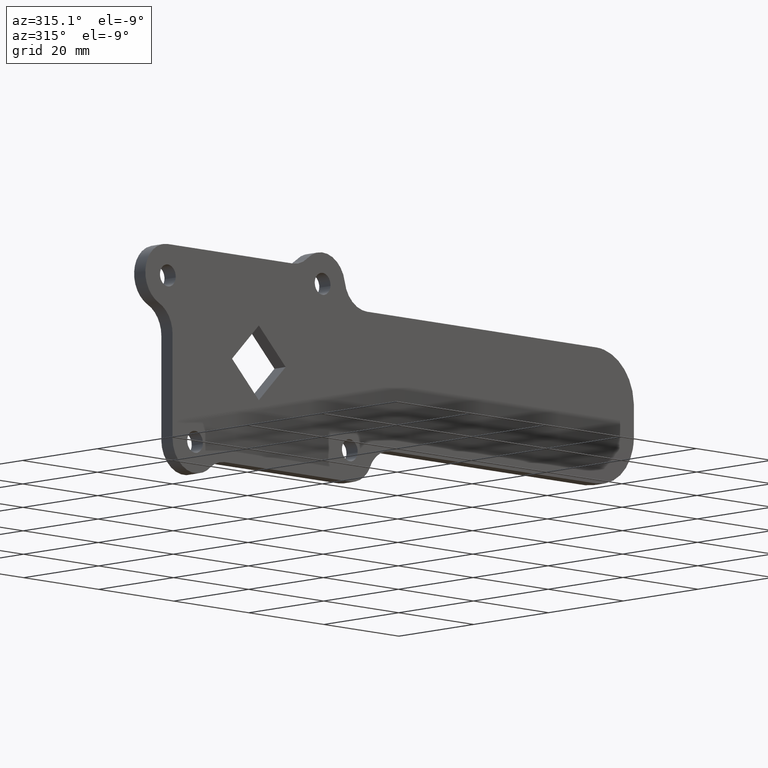
[diagram: clean part render]
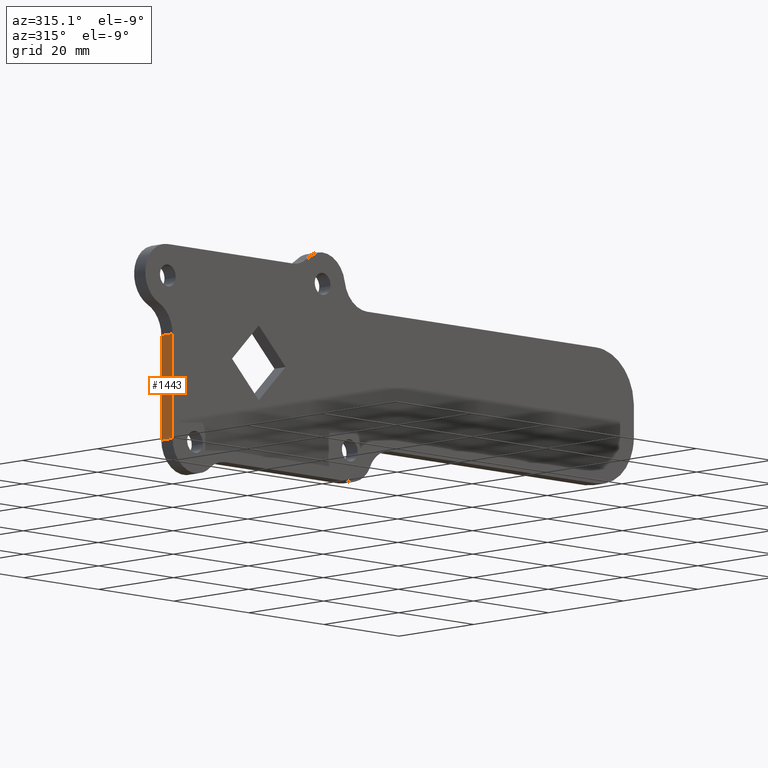
[diagram: same view with one face highlighted and labeled with its STEP entity id]
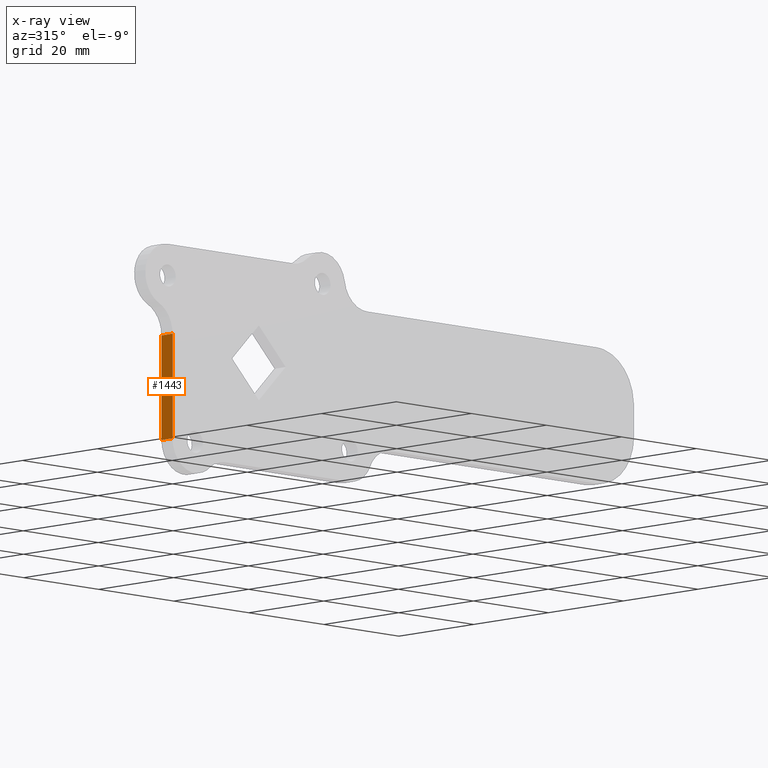
[diagram: x-ray of the same camera — body ghosted, the highlighted face saturated]
A machine part, auxiliary view. The second image highlights one B-rep face of the part: STEP entity #1443.
The next image is the same camera in x-ray: the body ghosted, the highlighted face saturated — about 0% of this face is hidden behind the body in this view.
In plain terms, the highlighted face is a freeform B-spline surface patch.
Its self-contained STEP definition (entity closure, byte-faithful):
#816=CARTESIAN_POINT('',(-23.0,0.0,-17.0));
#817=VERTEX_POINT('',#816);
#833=CARTESIAN_POINT('',(-23.0,0.0,2.980132000000000));
#834=VERTEX_POINT('',#833);
#835=CARTESIAN_POINT('',(-23.0,0.0,-17.0));
#836=CARTESIAN_POINT('',(-23.0,0.0,2.980132000000000));
#837=QUASI_UNIFORM_CURVE('',1,(#835,#836),.UNSPECIFIED.,.F.,.U.);
#838=EDGE_CURVE('',#817,#834,#837,.T.);
#1222=CARTESIAN_POINT('',(-23.0,-3.0,2.980132000000000));
#1223=VERTEX_POINT('',#1222);
#1237=CARTESIAN_POINT('',(-23.0,-3.0,-17.0));
#1238=VERTEX_POINT('',#1237);
#1239=CARTESIAN_POINT('',(-23.0,-3.0,-17.0));
#1240=CARTESIAN_POINT('',(-23.0,-3.0,2.980132000000000));
#1241=QUASI_UNIFORM_CURVE('',1,(#1239,#1240),.UNSPECIFIED.,.F.,.U.);
#1242=EDGE_CURVE('',#1238,#1223,#1241,.T.);
#1420=CARTESIAN_POINT('',(-23.0,-3.0,-17.0));
#1421=CARTESIAN_POINT('',(-23.0,0.0,-17.0));
#1422=QUASI_UNIFORM_CURVE('',1,(#1420,#1421),.UNSPECIFIED.,.F.,.U.);
#1423=EDGE_CURVE('',#1238,#817,#1422,.T.);
#1428=CARTESIAN_POINT('',(-23.0,-3.149849994185419,-17.998007554674629));
#1429=CARTESIAN_POINT('',(-23.0,-3.149849994185419,3.978140090583529));
#1430=CARTESIAN_POINT('',(-23.0,0.149850074651688,-17.998007554674629));
#1431=CARTESIAN_POINT('',(-23.0,0.149850074651688,3.978140090583529));
#1432=B_SPLINE_SURFACE_WITH_KNOTS('',1,1,((#1428,#1430),(#1429,#1431)),.UNSPECIFIED.,.F.,.F.,.U.,(2,2),(2,2),(0.0,21.976147645258159),(0.0,3.299700068837107),.UNSPECIFIED.);
#1433=ORIENTED_EDGE('',*,*,#838,.F.);
#1434=ORIENTED_EDGE('',*,*,#1423,.F.);
#1435=ORIENTED_EDGE('',*,*,#1242,.T.);
#1436=CARTESIAN_POINT('',(-23.0,-3.0,2.980132000000000));
#1437=CARTESIAN_POINT('',(-23.0,0.0,2.980132000000000));
#1438=QUASI_UNIFORM_CURVE('',1,(#1436,#1437),.UNSPECIFIED.,.F.,.U.);
#1439=EDGE_CURVE('',#1223,#834,#1438,.T.);
#1440=ORIENTED_EDGE('',*,*,#1439,.T.);
#1441=EDGE_LOOP('',(#1433,#1434,#1435,#1440));
#1442=FACE_OUTER_BOUND('',#1441,.T.);
#1443=ADVANCED_FACE('',(#1442),#1432,.T.);